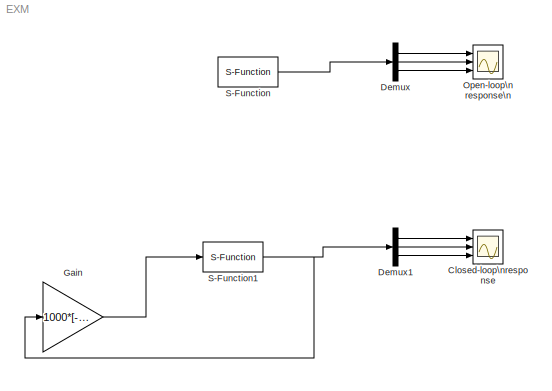
MODEL EXM
KIND model
BLOCK [Scope] Closed-loop\nresponse
  Floating = off
  NumInputPorts = 3
  Ports = [3]
  SID = 9
  ScopeSpecificationString = C++SS(StrPVP('Location','[188, 390, 908, 865]'),StrPVP('Open','off'),StrPVP('ZoomMode','xonly'),MxPVP('AxesTitles',53,'struct(''axes1'',''%<SignalLabel>'',''axes2'',''%<SignalLabel>'',''axes3'',''%<SignalLabel>'')'),MxPVP('ScopeGraphics',56,'struct(''FigureColor'',''[0.5 0.5 0.5]'',''AxesColor'',''[0 0 0]'',''AxesTickColor'',''[1 1 1]'',''LineColors'',''[1 1 0;1 0 1;0 1 1;1 0 0;0 1 0;0 0 1]'',''Li...<+405ch>
BLOCK [Demux] Demux
  DisplayOption = bar
  Outputs = 3
  Ports = [1, 3]
  SID = 3
BLOCK [Demux] Demux1
  DisplayOption = bar
  Outputs = 3
  Ports = [1, 3]
  SID = 8
BLOCK [Gain] Gain
  Gain = 1000*[-6.1420 ,  -6.2309 , -0.1563 , -0.1541]\n
  Multiplication = Matrix(K*u)
  OutDataTypeStr = Inherit: Inherit via internal rule
  ParamDataTypeStr = Inherit: Inherit via internal rule
  SID = 7
  SaturateOnIntegerOverflow = off
BLOCK [Scope] Open-loop\n response\n
  Floating = off
  NumInputPorts = 3
  Ports = [3]
  SID = 2
  ScopeSpecificationString = C++SS(StrPVP('Location','[178, 706, 920, 1219]'),StrPVP('Open','off'),StrPVP('ZoomMode','xonly'),MxPVP('AxesTitles',53,'struct(''axes1'',''%<SignalLabel>'',''axes2'',''%<SignalLabel>'',''axes3'',''%<SignalLabel>'')'),MxPVP('ScopeGraphics',56,'struct(''FigureColor'',''[0.5 0.5 0.5]'',''AxesColor'',''[0 0 0]'',''AxesTickColor'',''[1 1 1]'',''LineColors'',''[1 1 0;1 0 1;0 1 1;1 0 0;0 1 0;0 0 1]'',''L...<+374ch>
BLOCK [S-Function] S-Function
  EnableBusSupport = off
  FunctionName = sfunc
  Ports = [1, 1]
  SFcnIsStateOwnerBlock = off
  SFunctionDeploymentMode = off
  SID = 1
BLOCK [S-Function] S-Function1
  EnableBusSupport = off
  FunctionName = sfunc
  Ports = [1, 1]
  SFcnIsStateOwnerBlock = off
  SFunctionDeploymentMode = off
  SID = 5
LINE Demux1:1 -> Closed-loop\nresponse:1
LINE Demux1:2 -> Closed-loop\nresponse:2
LINE Demux1:3 -> Closed-loop\nresponse:3
LINE Demux:1 -> Open-loop\n response\n:1
LINE Demux:2 -> Open-loop\n response\n:2
LINE Demux:3 -> Open-loop\n response\n:3
LINE Gain:1 -> S-Function1:1
NET S-Function1:1 -> Demux1:1, Gain:1
LINE S-Function:1 -> Demux:1
note: NET lines group one-source signal fan-out (src -> all destinations, sorted); 1:1 wires keep LINE
